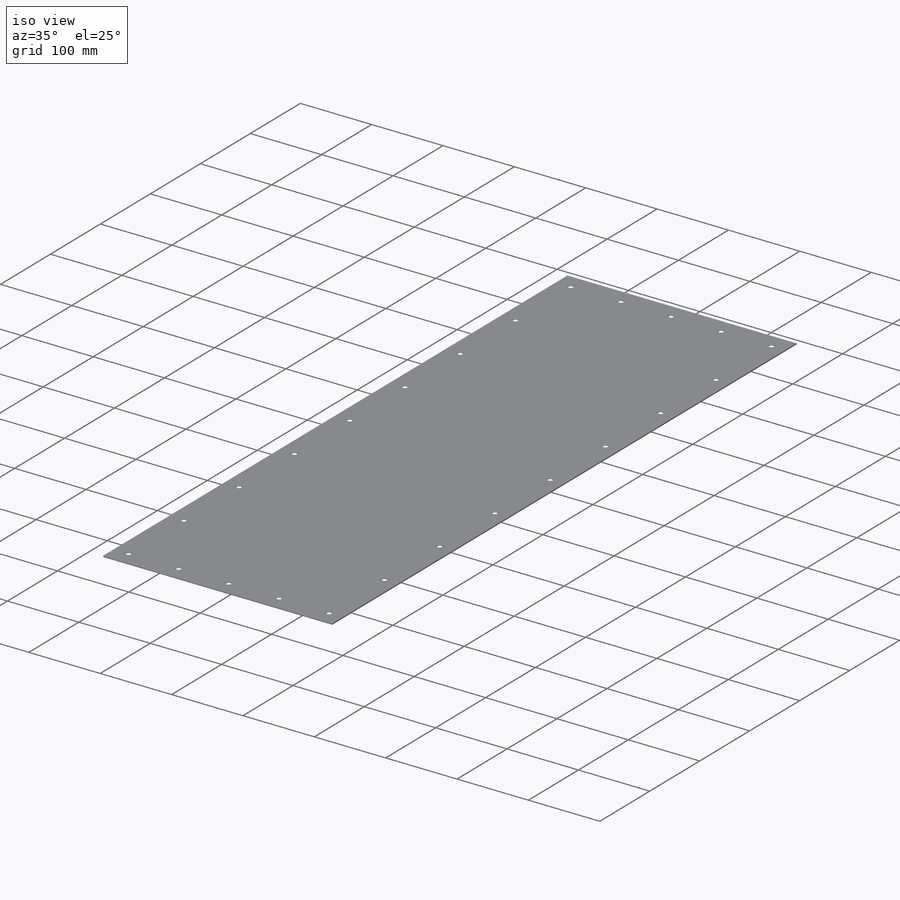
[diagram: iso view]
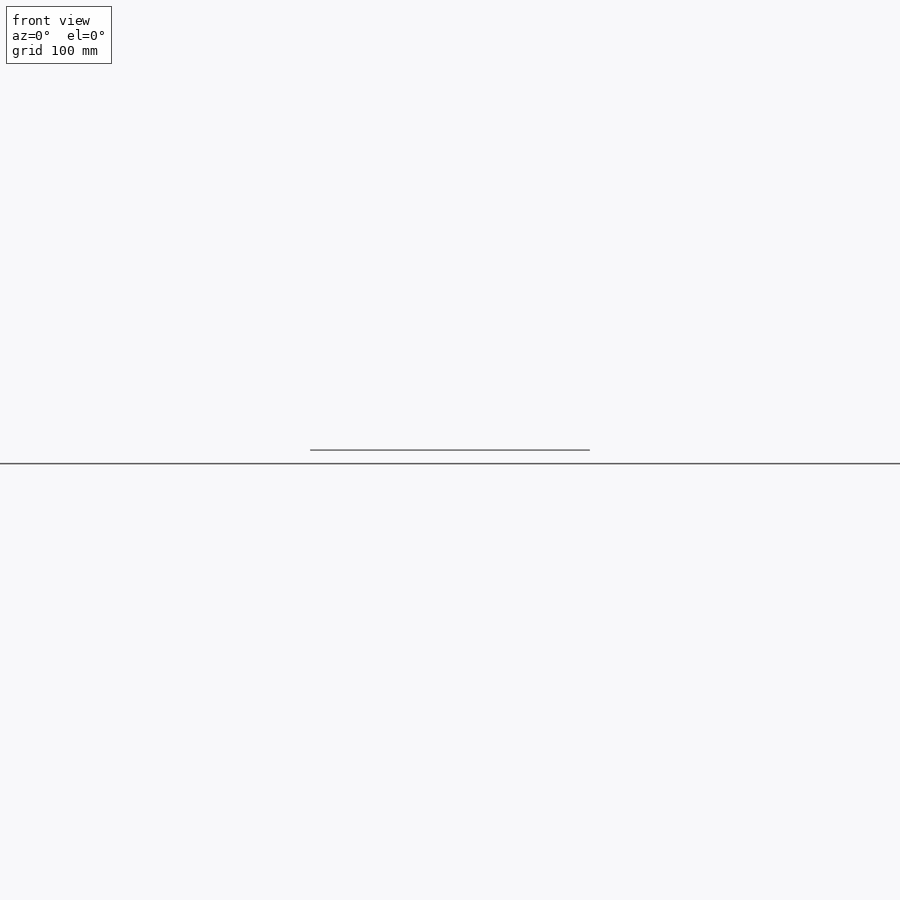
[diagram: front view]
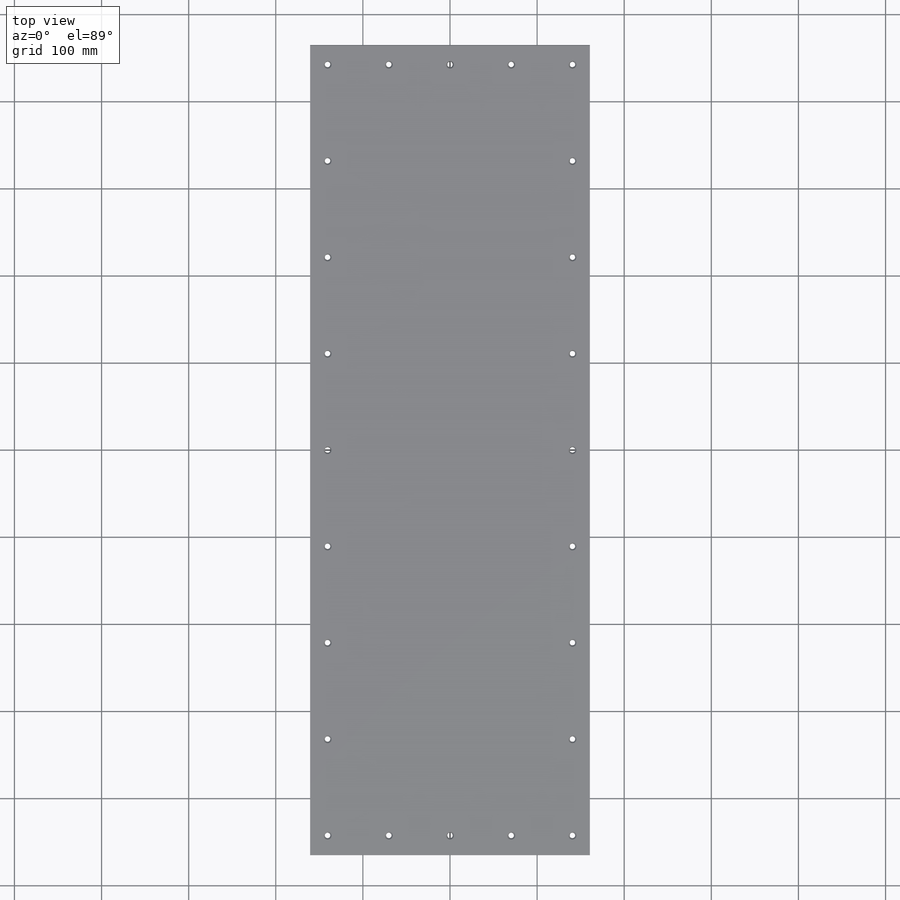
[diagram: top view]
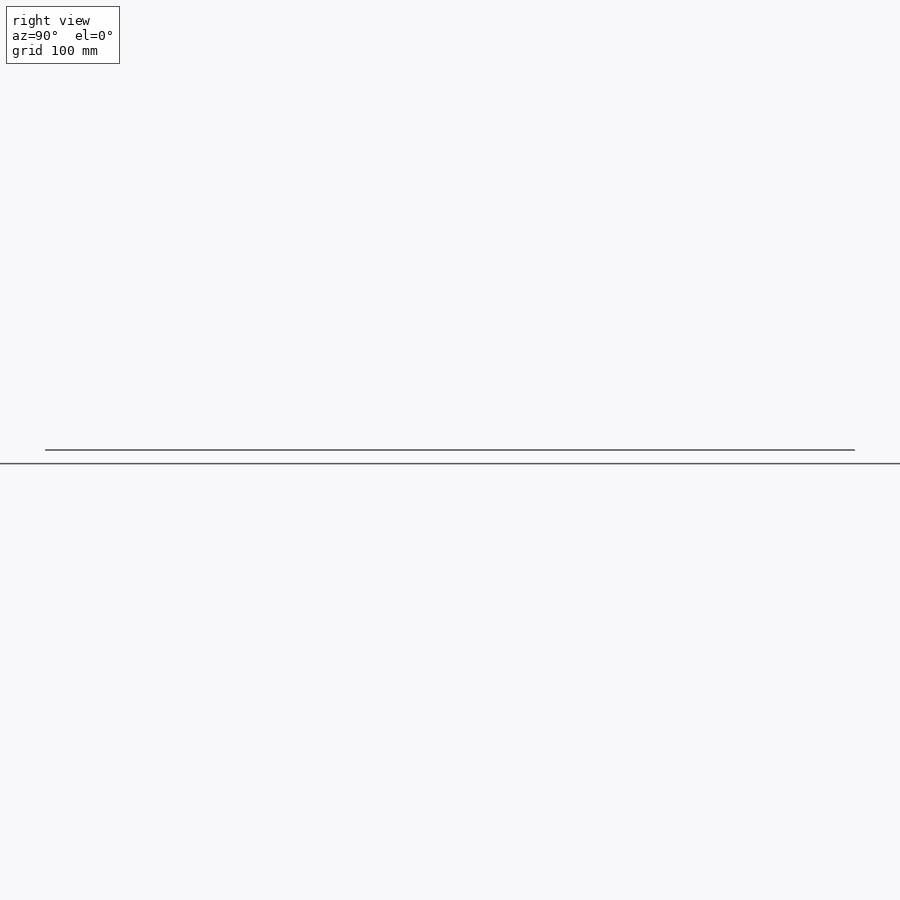
[diagram: right view]
SOLIDWORKS PART (.sldprt)
format: sldprt  version: not decoded by parser v0  size: 216,576 bytes
history: native  units: mm
features: sketch x4, material x1, extrude x1, chamfer x1, hole x1 (+13 scaffold rows collapsed)
feature tree (21):
  scaffold x13  (default folders/planes/origin — collapsed)
  material  "Material <not specified>"
  sketch  "Sketch1"  dims[D1=321.0mm D2=930.0mm]
  extrude  "Extrude1"  Depth=1.5875mm
  chamfer  "Chamfer1"  Distance=0.79375mm Angle=45deg
  sketch  "Sketch2"  dims[c1.D1=20.0mm c1.D2=22.5mm c2.D1=20.0mm c2.D2=20.0mm c2.D3=22.5mm c2.D4=281.0mm c2.D5=70.25mm c2.D6=70.25mm c2.D7=70.25mm c2.D8=22.5mm c2.D9=885.0mm c2.D10=110.625mm c2.D11=110.625mm c2.D12=110.625mm c2.D13=110.625mm c2.D14=110.625mm c2.D15=110.625mm c2.D16=110.625mm]
  hole  "CSK for M4 Flat Head Machine Screw1"  Diameter=4.5mm Depth=1.5875mm
  sketch  "3DSketch1"
  sketch  "Sketch3"  dims[hole-wizard template sketch: 55 standard entries collapsed; hole parameters kept: c17.Thru Hole Depth=1.5875mm c17.Near C'Sink Dia.=9.4mm c17.D4=~3.666174mm c17.Near C'Sink Angle=90.0deg]
decode coverage: 6 of 7 modeling features carry decoded parameters
note: ~ marks probable driven/reference dimensions
note: suppression state not decoded; provenance and decode notes live in map.json
